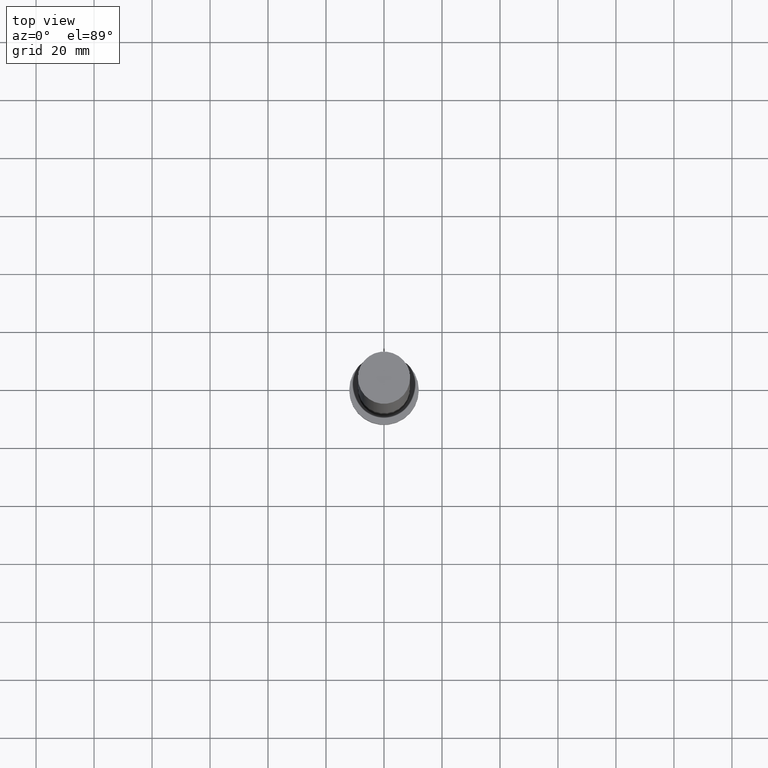
[diagram: clean part render]
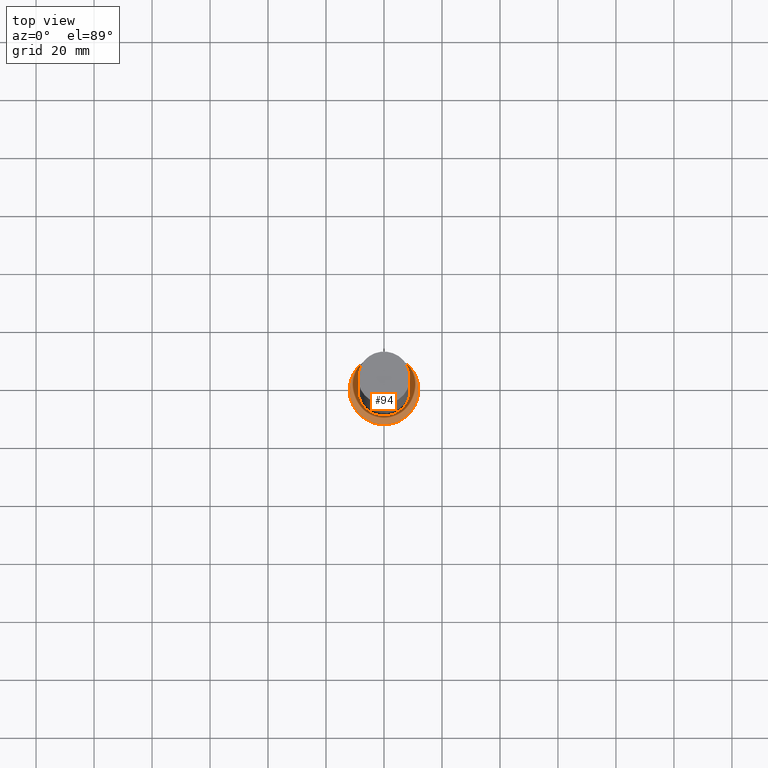
[diagram: same view with one face highlighted and labeled with its STEP entity id]
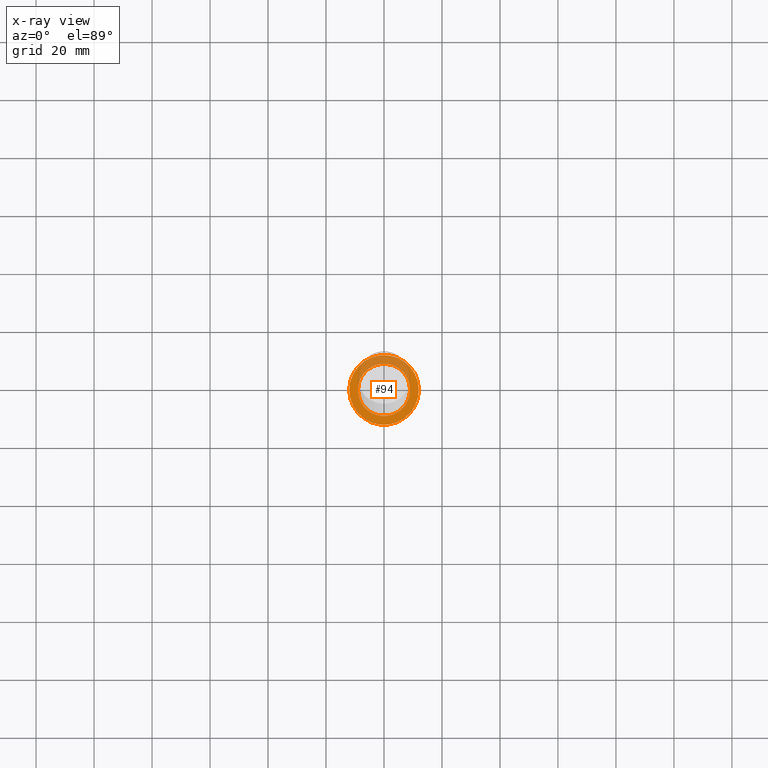
[diagram: x-ray of the same camera — body ghosted, the highlighted face saturated]
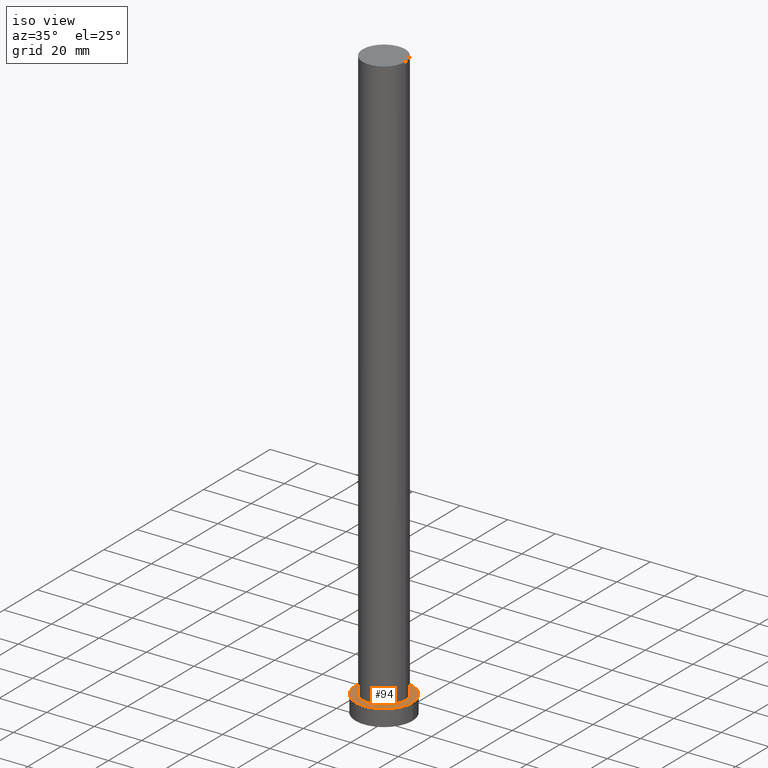
[diagram: same view with one face highlighted and labeled with its STEP entity id]
A machine part, top view. The second image highlights one B-rep face of the part: STEP entity #94.
The next image is the same camera in x-ray: the body ghosted, the highlighted face saturated — about 32% of this face is hidden behind the body in this view.
A second angle (iso view) of the same face is appended — the face is thin or edge-on in the first view.
In plain terms, the highlighted planar face has unit normal (0, 0, 1).
Its self-contained STEP definition (entity closure, byte-faithful):
#3 = ORIENTED_EDGE ( 'NONE', *, *, #171, .T. ) ;
#5 = DIRECTION ( 'NONE',  ( 0.000000000000000000, 0.000000000000000000, 1.000000000000000000 ) ) ;
#6 = VERTEX_POINT ( 'NONE', #80 ) ;
#8 = DIRECTION ( 'NONE',  ( 0.000000000000000000, 0.000000000000000000, 1.000000000000000000 ) ) ;
#12 = DIRECTION ( 'NONE',  ( 1.000000000000000000, 0.000000000000000000, 0.000000000000000000 ) ) ;
#28 = CIRCLE ( 'NONE', #91, 12.00000000000000178 ) ;
#31 = CARTESIAN_POINT ( 'NONE',  ( 0.000000000000000000, 0.000000000000000000, 7.000000000000000000 ) ) ;
#32 = AXIS2_PLACEMENT_3D ( 'NONE', #197, #226, #212 ) ;
#42 = CARTESIAN_POINT ( 'NONE',  ( 0.000000000000000000, 0.000000000000000000, 7.000000000000000000 ) ) ;
#55 = VERTEX_POINT ( 'NONE', #204 ) ;
#61 = AXIS2_PLACEMENT_3D ( 'NONE', #42, #5, #187 ) ;
#71 = EDGE_CURVE ( 'NONE', #55, #233, #185, .T. ) ;
#78 = VERTEX_POINT ( 'NONE', #205 ) ;
#80 = CARTESIAN_POINT ( 'NONE',  ( -12.00000000000000178, 0.000000000000000000, 7.000000000000000000 ) ) ;
#87 = DIRECTION ( 'NONE',  ( 1.000000000000000000, 0.000000000000000000, 0.000000000000000000 ) ) ;
#91 = AXIS2_PLACEMENT_3D ( 'NONE', #155, #176, #87 ) ;
#94 = ADVANCED_FACE ( 'NONE', ( #109, #132 ), #174, .T. ) ;
#108 = DIRECTION ( 'NONE',  ( 0.000000000000000000, 0.000000000000000000, 1.000000000000000000 ) ) ;
#109 = FACE_BOUND ( 'NONE', #148, .T. ) ;
#112 = AXIS2_PLACEMENT_3D ( 'NONE', #250, #8, #12 ) ;
#130 = DIRECTION ( 'NONE',  ( 1.000000000000000000, 0.000000000000000000, -0.000000000000000000 ) ) ;
#132 = FACE_OUTER_BOUND ( 'NONE', #221, .T. ) ;
#148 = EDGE_LOOP ( 'NONE', ( #234, #150 ) ) ;
#150 = ORIENTED_EDGE ( 'NONE', *, *, #253, .F. ) ;
#155 = CARTESIAN_POINT ( 'NONE',  ( 0.000000000000000000, 0.000000000000000000, 7.000000000000000000 ) ) ;
#169 = ORIENTED_EDGE ( 'NONE', *, *, #249, .T. ) ;
#171 = EDGE_CURVE ( 'NONE', #6, #78, #237, .T. ) ;
#174 = PLANE ( 'NONE',  #242 ) ;
#176 = DIRECTION ( 'NONE',  ( 0.000000000000000000, 0.000000000000000000, 1.000000000000000000 ) ) ;
#185 = CIRCLE ( 'NONE', #61, 9.000000000000000000 ) ;
#187 = DIRECTION ( 'NONE',  ( 1.000000000000000000, 0.000000000000000000, 0.000000000000000000 ) ) ;
#197 = CARTESIAN_POINT ( 'NONE',  ( 0.000000000000000000, 0.000000000000000000, 7.000000000000000000 ) ) ;
#204 = CARTESIAN_POINT ( 'NONE',  ( -9.000000000000000000, 0.000000000000000000, 7.000000000000000000 ) ) ;
#205 = CARTESIAN_POINT ( 'NONE',  ( 12.00000000000000178, 1.469576158976824144E-15, 7.000000000000000000 ) ) ;
#210 = CIRCLE ( 'NONE', #112, 9.000000000000000000 ) ;
#212 = DIRECTION ( 'NONE',  ( 1.000000000000000000, 0.000000000000000000, 0.000000000000000000 ) ) ;
#221 = EDGE_LOOP ( 'NONE', ( #3, #169 ) ) ;
#224 = CARTESIAN_POINT ( 'NONE',  ( 9.000000000000000000, 1.102182119232617714E-15, 7.000000000000000000 ) ) ;
#226 = DIRECTION ( 'NONE',  ( 0.000000000000000000, 0.000000000000000000, 1.000000000000000000 ) ) ;
#233 = VERTEX_POINT ( 'NONE', #224 ) ;
#234 = ORIENTED_EDGE ( 'NONE', *, *, #71, .F. ) ;
#237 = CIRCLE ( 'NONE', #32, 12.00000000000000178 ) ;
#242 = AXIS2_PLACEMENT_3D ( 'NONE', #31, #108, #130 ) ;
#249 = EDGE_CURVE ( 'NONE', #78, #6, #28, .T. ) ;
#250 = CARTESIAN_POINT ( 'NONE',  ( 0.000000000000000000, 0.000000000000000000, 7.000000000000000000 ) ) ;
#253 = EDGE_CURVE ( 'NONE', #233, #55, #210, .T. ) ;